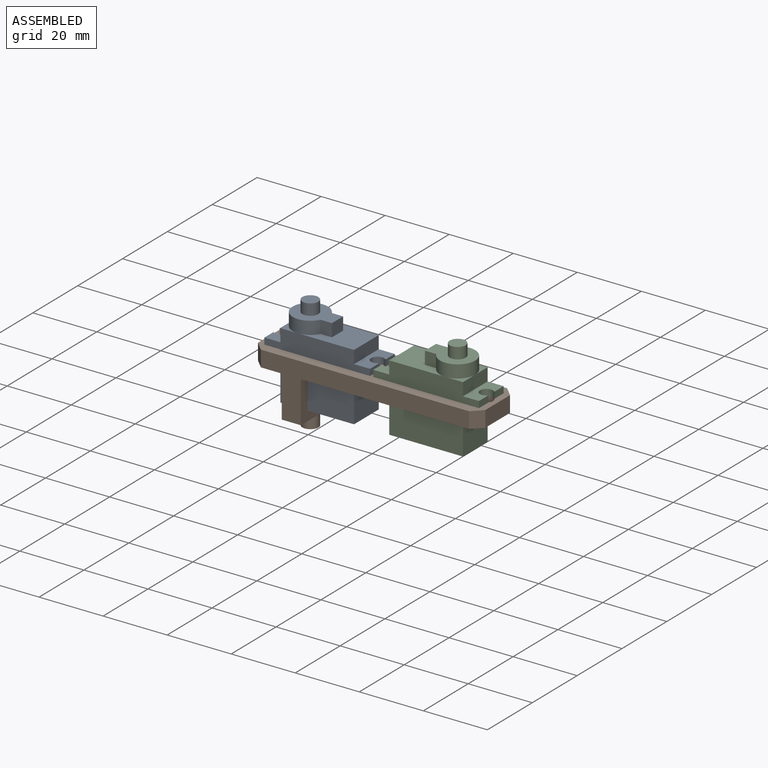
[diagram: assembled view]
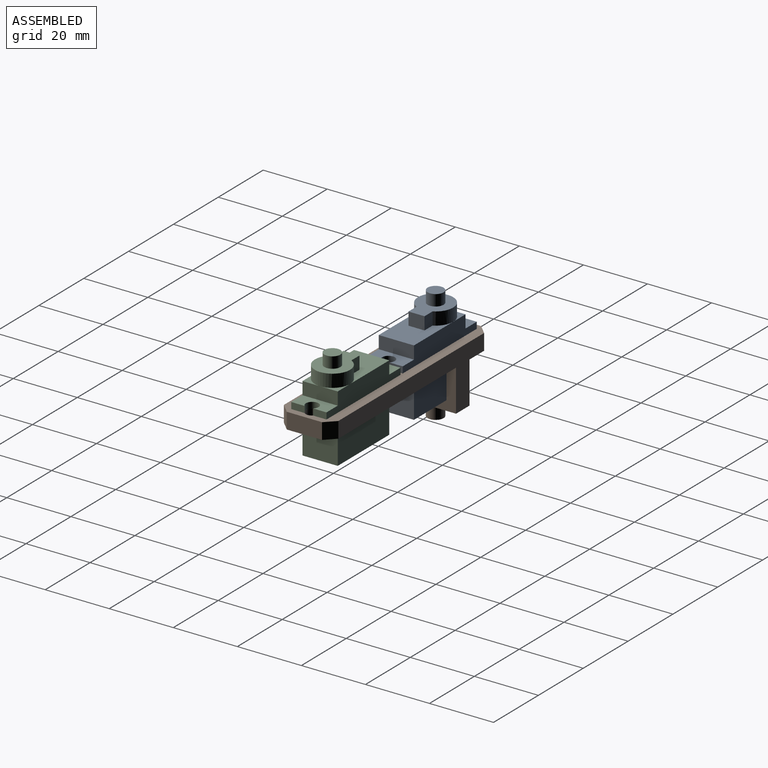
[diagram: assembled view, second angle]
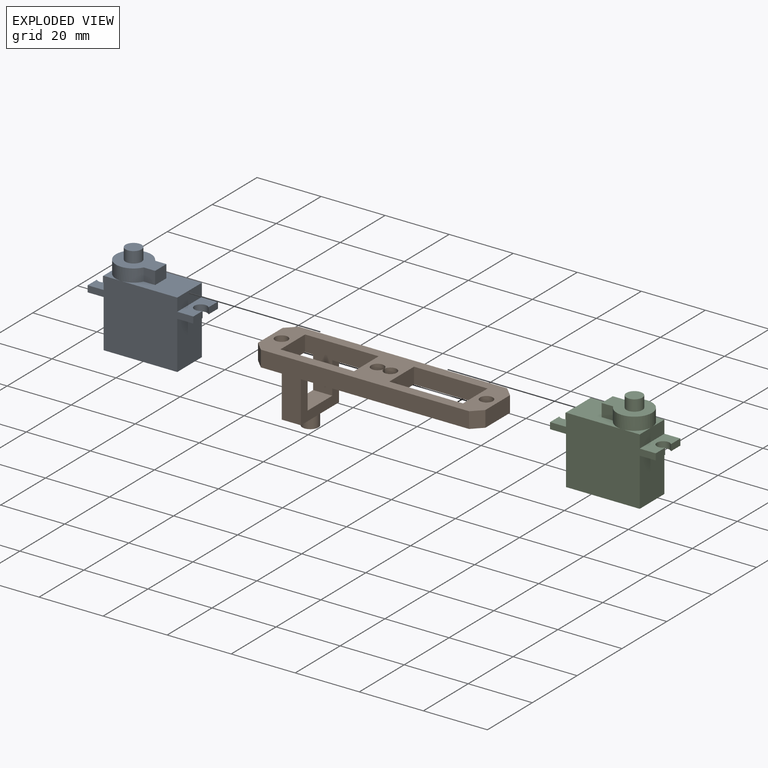
[diagram: exploded view]
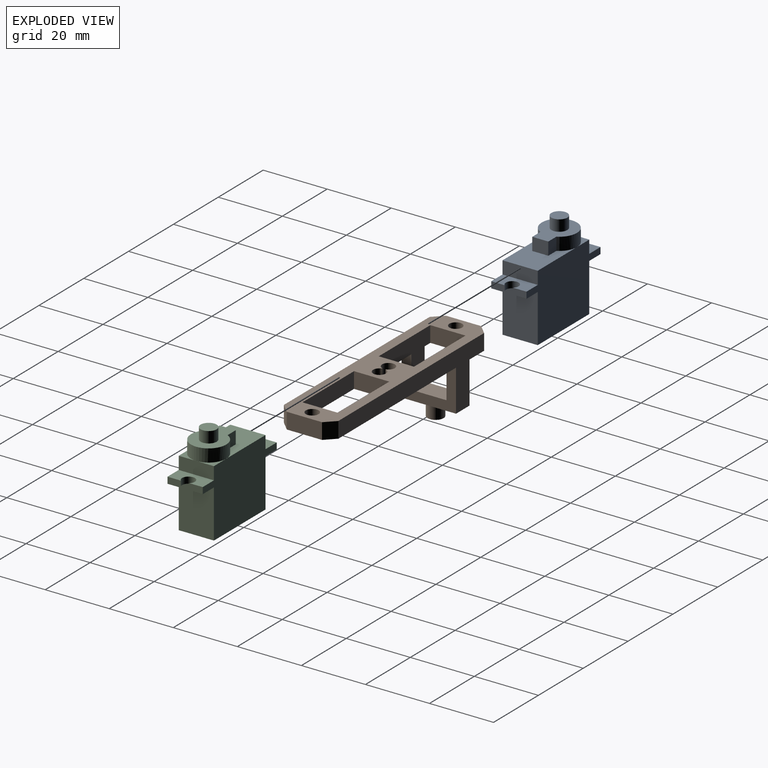
[diagram: exploded view, second angle]
ASSEMBLY  parts=3 mates=2
PART A: 27 faces, bbox 33x11x28.5 mm
  f0: plane 15x11mm, normal (1,0,0), area 165mm2, adj f4,f6,f8,f23
  f1: plane 15x11mm, normal (-1,0,0), area 165mm2, adj f4,f6,f8,f18
  f2: plane 5.5x5.5mm, normal (0,0,1), area 6.5mm2, adj f5,f6,f12
  f3: plane 17.5x11mm, normal (0,0,1), area 129mm2, adj f4,f6,f7,f10,f11,f12,f13
  f4: plane 33x21mm, normal (0,1,0), area 503mm2, adj f0,f1,f3,f5,f7,f8,f9,f15
  f5: plane 11x4mm, normal (-1,0,0), area 44mm2, adj f2,f4,f6,f9,f19
  f6: plane 33x21mm, normal (0,-1,0), area 503mm2, adj f0,f1,f2,f3,f5,f7,f8,f17
  f7: plane 11x4mm, normal (1,0,0), area 44mm2, adj f3,f4,f6,f24
  f8: plane 23x11mm, normal (0,0,-1), area 253mm2, adj f0,f1,f4,f6
  f9: plane 5.5x5.5mm, normal (0,0,1), area 6.5mm2, adj f4,f5,f12
  f10: plane 5x4mm, normal (1,0,0), area 20mm2, adj f3,f11,f13,f14
  f11: plane 4x3.6mm, normal (0,1,0), area 14.4mm2, adj f3,f10,f12,f14
  f12: cylinder r=5.5mm len=11mm, axis (0,0,-1), area 117.5mm2, adj f2,f3,f9,f11,f13,f14
  f13: plane 4x3.6mm, normal (0,-1,0), area 14.4mm2, adj f3,f10,f12,f14
  f14: plane 14x11mm, normal (0,0,1), area 91.4mm2, adj f10,f11,f12,f13,f25
  f15: plane 4.18x2mm, normal (-1,0,0), area 8.4mm2, adj f4,f16,f18,f19
  f16: cylinder r=2mm len=4mm, axis (0,0,1), area 19.4mm2, adj f15,f17,f18,f19
  f17: plane 4.18x2mm, normal (-1,0,0), area 8.4mm2, adj f6,f16,f18,f19
  f18: plane 11x5mm, normal (0,0,-1), area 43.3mm2, adj f1,f4,f6,f15,f16,f17
  f19: plane 11x5mm, normal (0,0,1), area 43.3mm2, adj f4,f5,f6,f15,f16,f17
  f20: plane 4.18x2mm, normal (1,0,0), area 8.4mm2, adj f6,f21,f23,f24
  f21: cylinder r=2mm len=4mm, axis (0,0,1), area 19.4mm2, adj f20,f22,f23,f24
  f22: plane 4.18x2mm, normal (1,0,0), area 8.4mm2, adj f4,f21,f23,f24
  f23: plane 11x5mm, normal (0,0,-1), area 43.3mm2, adj f0,f4,f6,f20,f21,f22
  f24: plane 11x5mm, normal (0,0,1), area 43.3mm2, adj f4,f6,f7,f20,f21,f22
  f25: cylinder r=2.5mm len=5mm, axis (0,0,-1), area 55mm2, adj f14,f26
  f26: plane 5x5mm, normal (0,0,1), area 19.6mm2, adj f25
PART B: 31 faces, bbox 71x17x22 mm
  f0: plane 17x9.5mm, normal (0,0,-1), area 112.4mm2, adj f7,f8,f9,f10,f11,f16,f17,f19
  f1: plane 55.5x17mm, normal (0,0,-1), area 484.3mm2, adj f2,f3,f4,f5,f6,f7,f11,f12
  f2: plane 11x5mm, normal (1,0,0), area 55mm2, adj f1,f3,f23,f24
  f3: plane 23x5mm, normal (0,-1,0), area 115mm2, adj f1,f2,f4,f24
  f4: plane 11x5mm, normal (-1,0,0), area 55mm2, adj f1,f3,f23,f24
  f5: plane 11x5mm, normal (1,0,0), area 55mm2, adj f1,f6,f18,f24
  f6: plane 5x3mm, normal (0.71,0.71,0), area 21.2mm2, adj f1,f5,f7,f24
  f7: plane 65x18mm, normal (0,1,0), area 403mm2, adj f0,f1,f6,f8,f24,f25,f26,f27
  f8: plane 5x3mm, normal (-0.71,0.71,0), area 21.2mm2, adj f0,f7,f9,f24
  f9: plane 11x5mm, normal (-1,0,0), area 55mm2, adj f0,f8,f10,f24
  f10: plane 5x3mm, normal (-0.71,-0.71,0), area 21.2mm2, adj f0,f9,f11,f24
  f11: plane 65x18mm, normal (0,-1,0), area 403mm2, adj f0,f1,f10,f18,f24,f25,f26,f27
  f12: plane 5x0.13mm, normal (0,-1,0), area 0.6mm2, adj f1,f13,f21,f24
  f13: cylinder r=2mm len=5mm, axis (0,0,-1), area 57.8mm2, adj f1,f12,f14,f24
  f14: plane 5x0.13mm, normal (0,1,0), area 0.6mm2, adj f1,f13,f21,f24
  f15: plane 11x5mm, normal (-1,0,0), area 55mm2, adj f1,f16,f22,f24
  f16: plane 23x15mm, normal (0,1,0), area 175mm2, adj f0,f1,f15,f17,f24,f25,f26,f28
  f17: plane 11x5mm, normal (1,0,0), area 55mm2, adj f0,f16,f22,f24
  f18: plane 5x3mm, normal (0.71,-0.71,0), area 21.2mm2, adj f1,f5,f11,f24
  f19: cylinder r=2mm len=5mm, axis (0,0,-1), area 62.8mm2, adj f0,f24
  f20: cylinder r=2mm len=5mm, axis (0,0,-1), area 62.8mm2, adj f1,f24
  f21: cylinder r=2mm len=5mm, axis (0,0,-1), area 57.8mm2, adj f1,f12,f14,f24
  f22: plane 23x15mm, normal (0,-1,0), area 175mm2, adj f0,f1,f15,f17,f24,f25,f26,f28
  f23: plane 23x5mm, normal (0,1,0), area 115mm2, adj f1,f2,f4,f24
  f24: plane 71x17mm, normal (0,0,1), area 632.7mm2, adj f2,f3,f4,f5,f6,f7,f8,f9
  f25: plane 17x13mm, normal (-1,0,0), area 111mm2, adj f0,f7,f11,f16,f22,f27,f28
  f26: plane 17x13mm, normal (1,0,0), area 111mm2, adj f1,f7,f11,f16,f22,f27,f28
  f27: plane 17x6mm, normal (0,0,-1), area 82.4mm2, adj f7,f11,f25,f26,f29
  f28: plane 11x6mm, normal (0,0,1), area 66mm2, adj f16,f22,f25,f26
  f29: cylinder r=2.5mm len=5mm, axis (0,0,1), area 62.8mm2, adj f27,f30
  f30: plane 5x5mm, normal (0,0,-1), area 19.6mm2, adj f29
PART C: same geometry as A
PLACE A t=(-15.36,2.93,8.02)mm
PLACE B t=(1.64,2.93,-2.98)mm
PLACE C rot(axis=(0,0,1),180deg) t=(18.64,2.93,8.02)mm
MATE fastened A.f1 <-> B.f17  axis (-1,0,0) through (-26.86,2.93,2.02)mm
MATE fastened C.f0 <-> B.f2  axis (-1,0,0) through (7.14,2.93,2.02)mm
